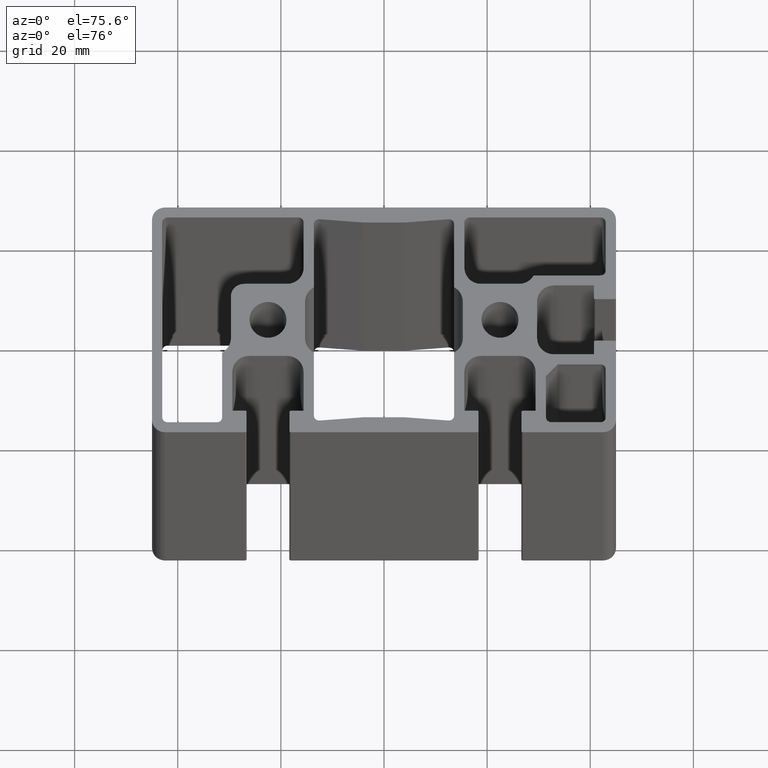
[diagram: clean part render]
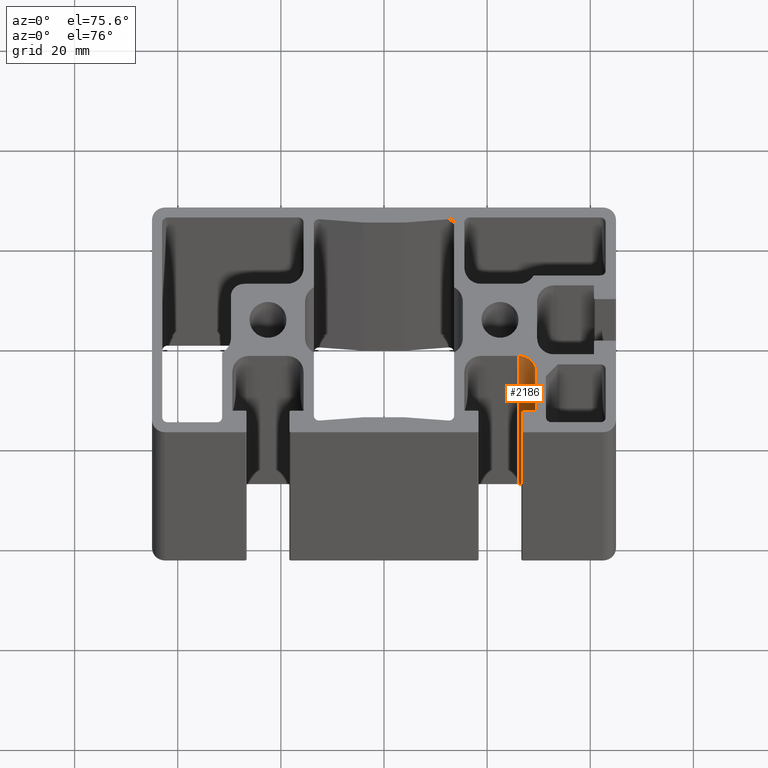
[diagram: same view with one face highlighted and labeled with its STEP entity id]
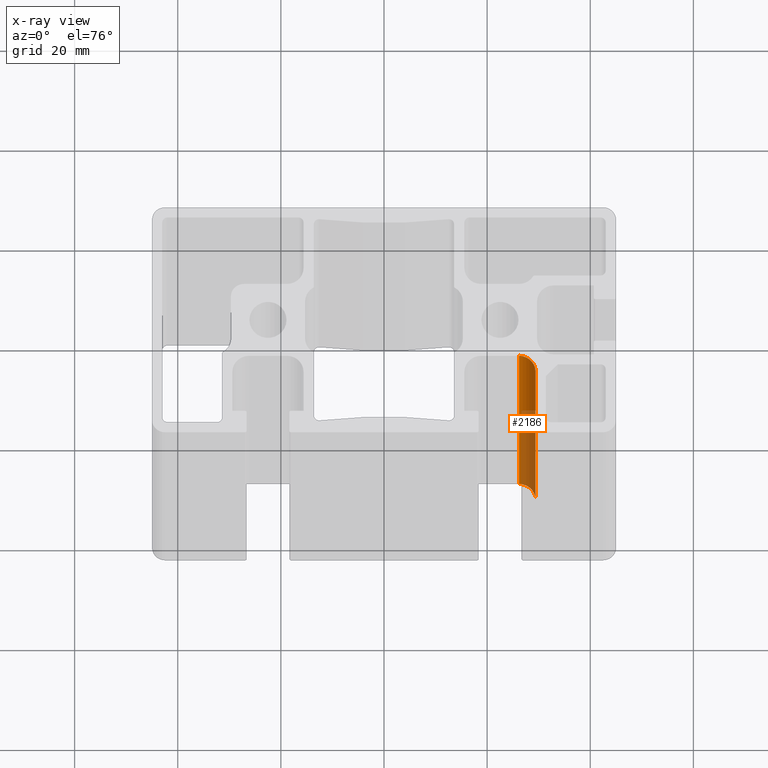
[diagram: x-ray of the same camera — body ghosted, the highlighted face saturated]
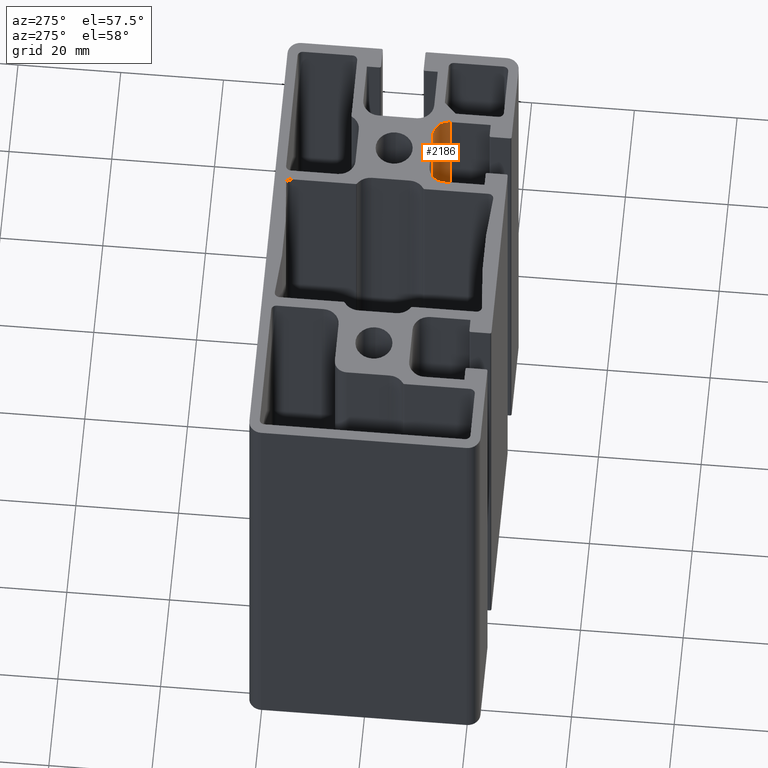
[diagram: same view with one face highlighted and labeled with its STEP entity id]
A machine part, auxiliary view. The second image highlights one B-rep face of the part: STEP entity #2186.
The next image is the same camera in x-ray: the body ghosted, the highlighted face saturated — about 51% of this face is hidden behind the body in this view.
A second angle (auxiliary view) of the same face is appended — the face is thin or edge-on in the first view.
In plain terms, the highlighted cylindrical surface (edge-blend (fillet) strip) has radius 3.2 mm, axis along (0, 0, 1).
Its self-contained STEP definition (entity closure, byte-faithful):
#141=FACE_OUTER_BOUND('',#253,.T.);
#253=EDGE_LOOP('',(#1636,#1637,#1638,#1639));
#434=LINE('',#3449,#656);
#435=LINE('',#3455,#657);
#656=VECTOR('',#2785,100.);
#657=VECTOR('',#2792,100.);
#822=CIRCLE('',#2353,3.2);
#823=CIRCLE('',#2354,3.2);
#983=VERTEX_POINT('',#3443);
#985=VERTEX_POINT('',#3447);
#986=VERTEX_POINT('',#3451);
#987=VERTEX_POINT('',#3453);
#1256=EDGE_CURVE('',#985,#983,#434,.T.);
#1257=EDGE_CURVE('',#983,#986,#822,.T.);
#1258=EDGE_CURVE('',#987,#985,#823,.T.);
#1259=EDGE_CURVE('',#987,#986,#435,.T.);
#1636=ORIENTED_EDGE('',*,*,#1257,.F.);
#1637=ORIENTED_EDGE('',*,*,#1256,.F.);
#1638=ORIENTED_EDGE('',*,*,#1258,.F.);
#1639=ORIENTED_EDGE('',*,*,#1259,.T.);
#2106=CYLINDRICAL_SURFACE('',#2352,3.2);
#2186=ADVANCED_FACE('',(#141),#2106,.F.);
#2352=AXIS2_PLACEMENT_3D('',#3450,#2786,#2787);
#2353=AXIS2_PLACEMENT_3D('',#3452,#2788,#2789);
#2354=AXIS2_PLACEMENT_3D('',#3454,#2790,#2791);
#2785=DIRECTION('',(0.,0.,1.));
#2786=DIRECTION('center_axis',(0.,0.,1.));
#2787=DIRECTION('ref_axis',(-1.,0.,0.));
#2788=DIRECTION('center_axis',(0.,0.,-1.));
#2789=DIRECTION('ref_axis',(-1.,0.,0.));
#2790=DIRECTION('center_axis',(0.,0.,1.));
#2791=DIRECTION('ref_axis',(-1.,0.,0.));
#2792=DIRECTION('',(0.,0.,1.));
#3443=CARTESIAN_POINT('',(26.2,-7.2,100.));
#3447=CARTESIAN_POINT('',(26.2,-7.2,0.));
#3449=CARTESIAN_POINT('',(26.2,-7.2,0.));
#3450=CARTESIAN_POINT('Origin',(26.2,-10.4,0.));
#3451=CARTESIAN_POINT('',(29.4,-10.4,100.));
#3452=CARTESIAN_POINT('Origin',(26.2,-10.4,100.));
#3453=CARTESIAN_POINT('',(29.4,-10.4,0.));
#3454=CARTESIAN_POINT('Origin',(26.2,-10.4,0.));
#3455=CARTESIAN_POINT('',(29.4,-10.4,0.));